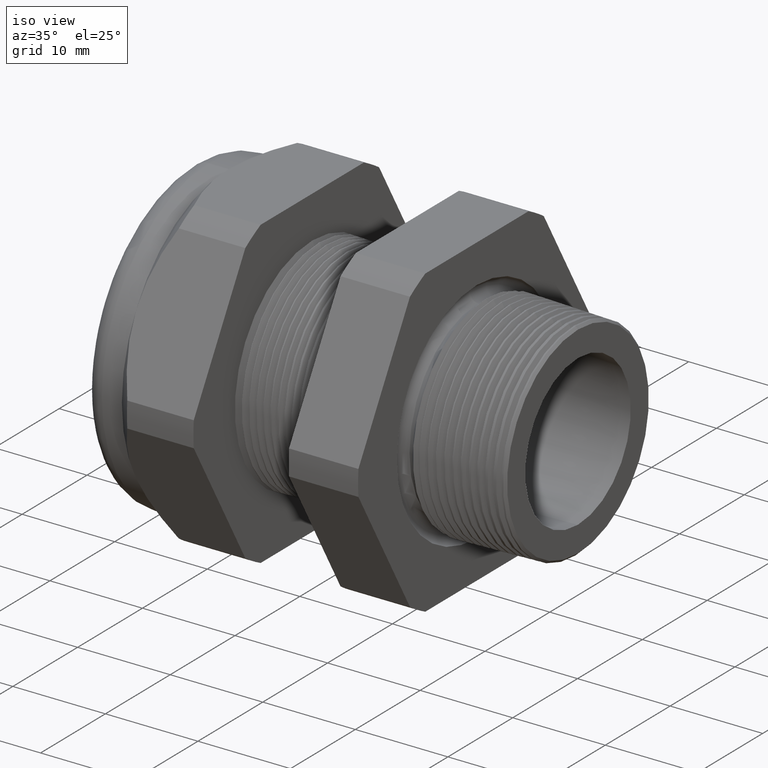
[diagram: clean part render]
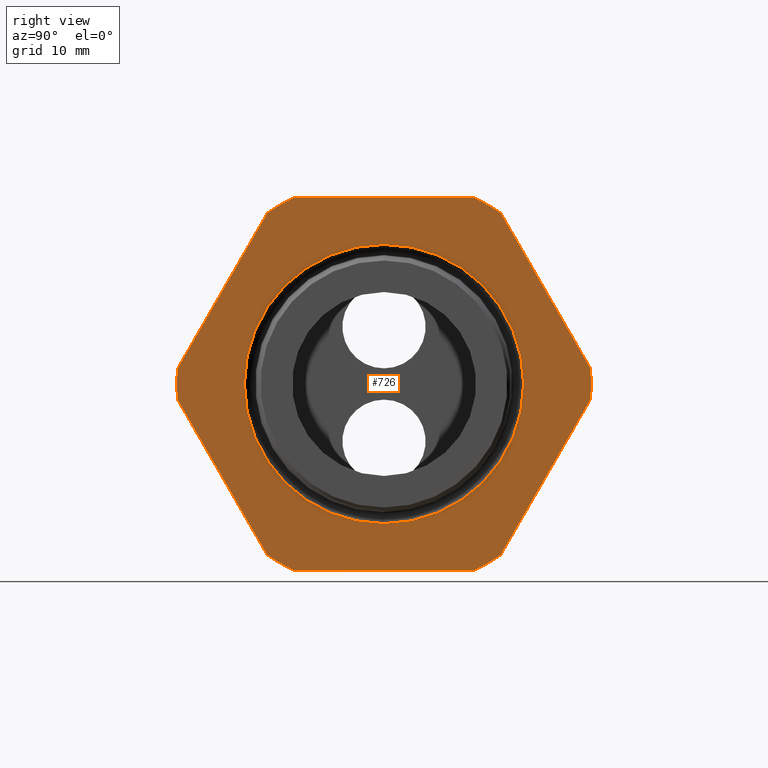
[diagram: tour spotlight — one face highlighted and labeled with its STEP entity id]
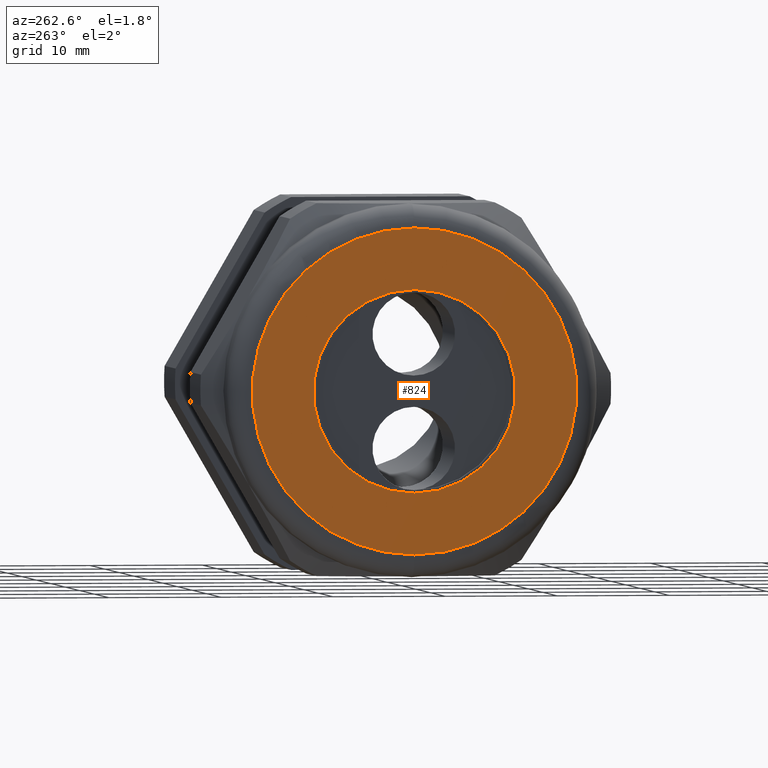
[diagram: tour spotlight — one face highlighted and labeled with its STEP entity id]
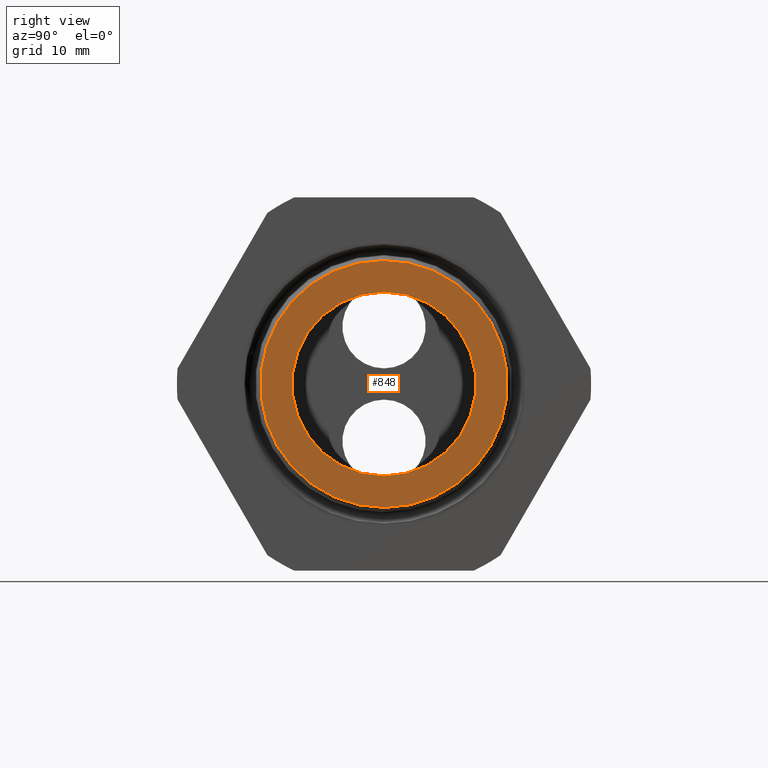
[diagram: tour spotlight — one face highlighted and labeled with its STEP entity id]
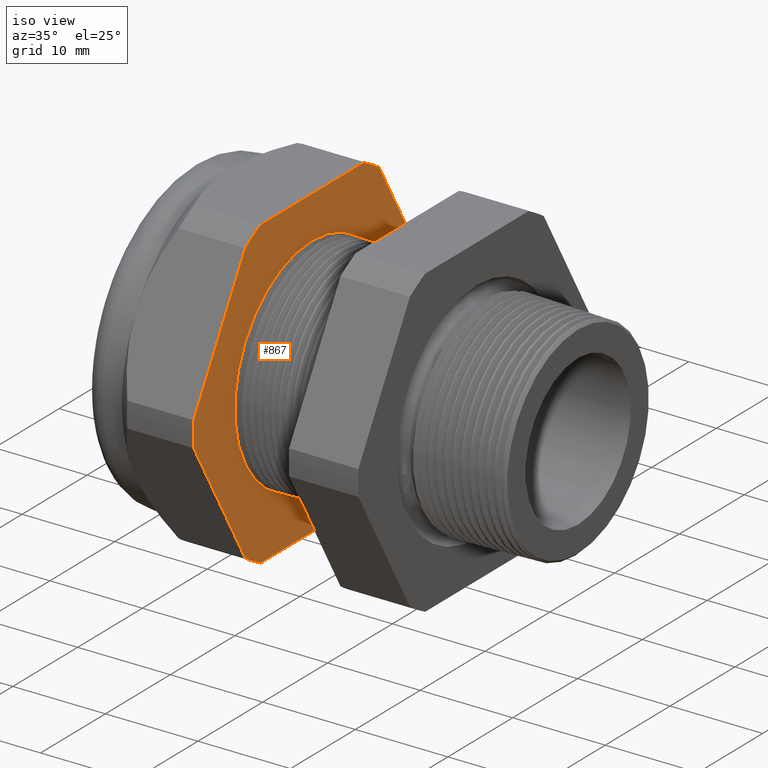
[diagram: tour spotlight — one face highlighted and labeled with its STEP entity id]
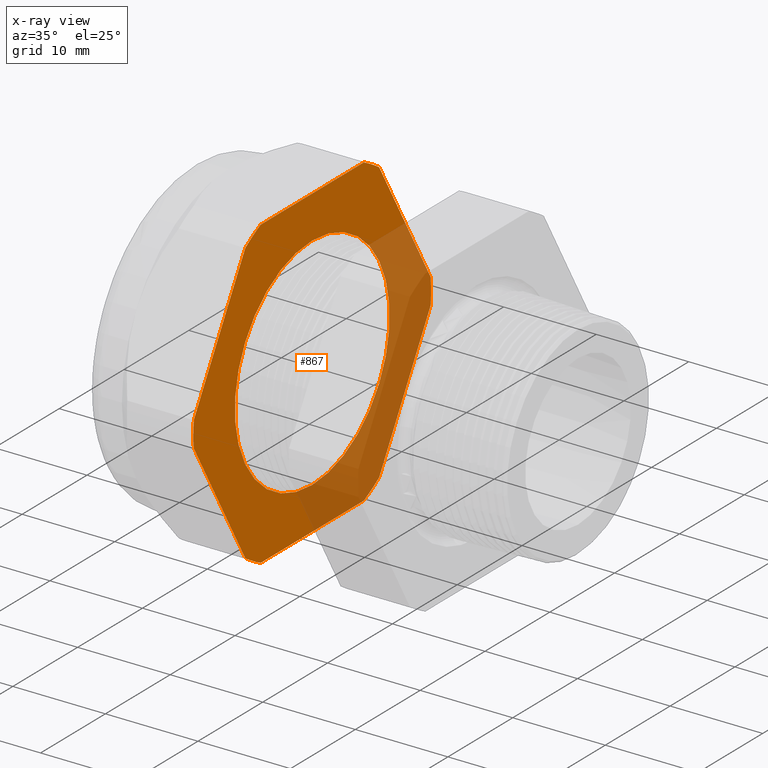
[diagram: x-ray of the same camera — body ghosted, this tour face saturated]
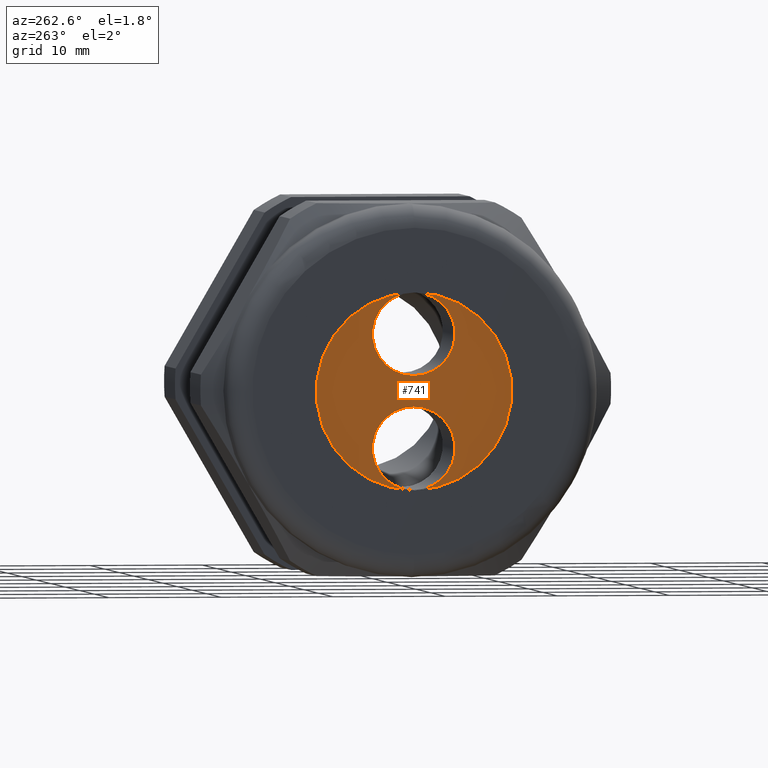
[diagram: tour spotlight — one face highlighted and labeled with its STEP entity id]
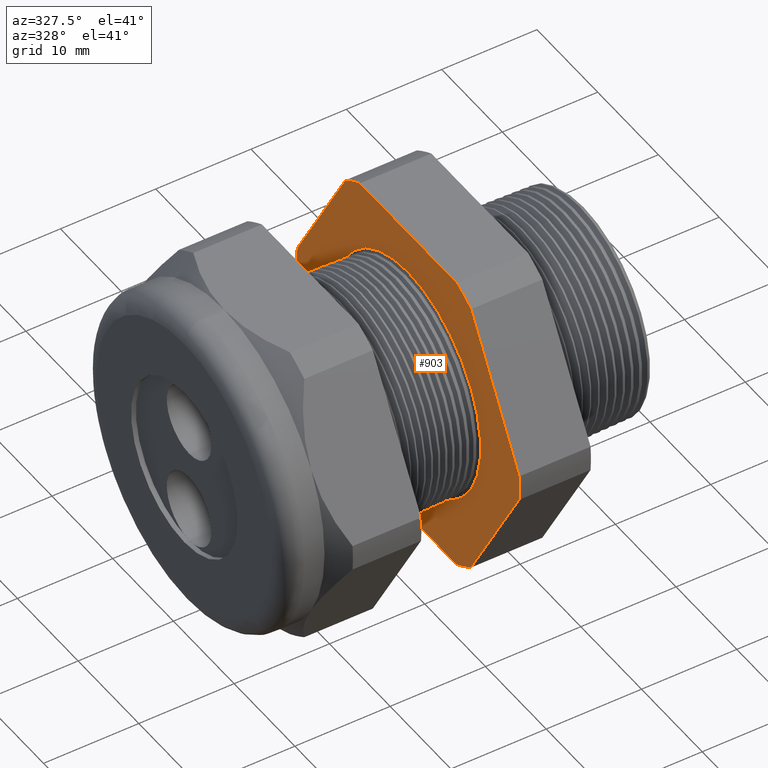
[diagram: tour spotlight — one face highlighted and labeled with its STEP entity id]
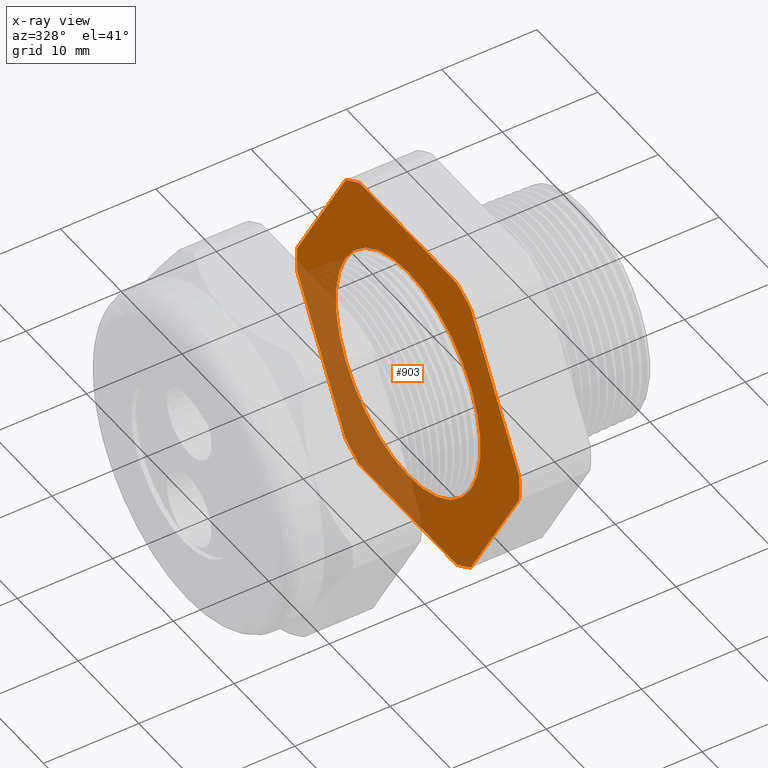
[diagram: x-ray of the same camera — body ghosted, this tour face saturated]
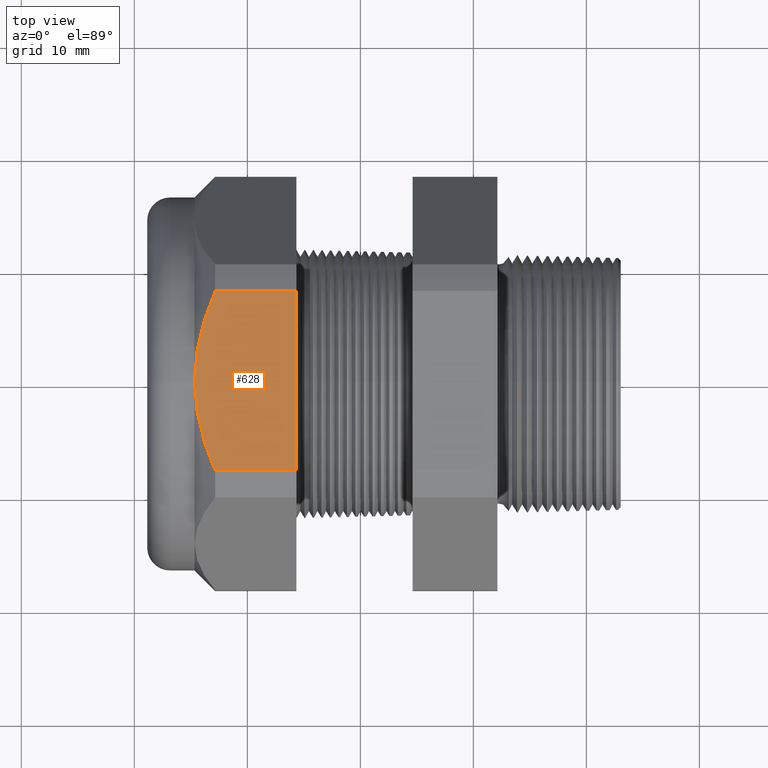
[diagram: tour spotlight — one face highlighted and labeled with its STEP entity id]
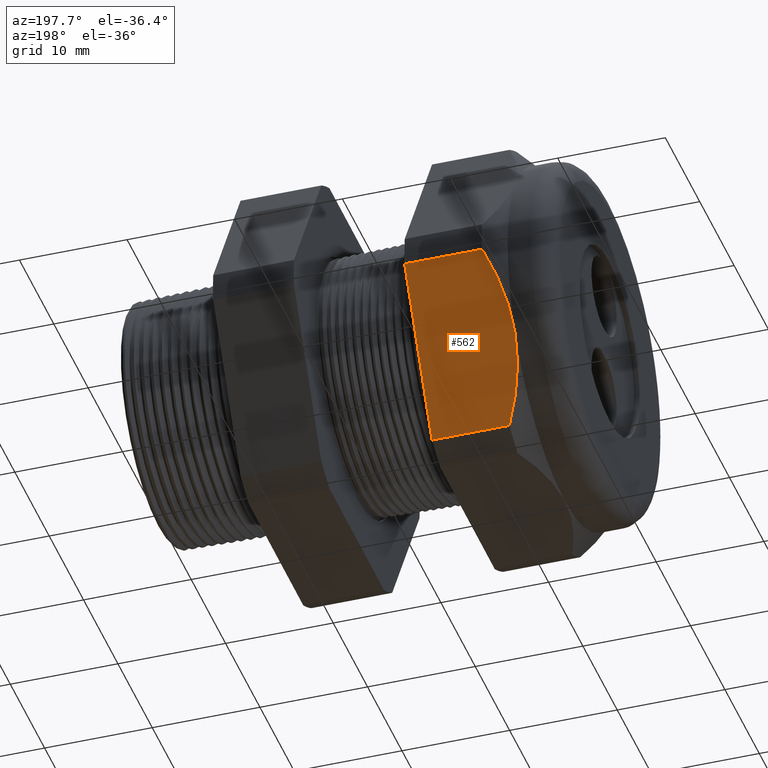
[diagram: tour spotlight — one face highlighted and labeled with its STEP entity id]
A machine part: a face-by-face anatomy tour. The part has 210 B-rep faces; the first image is the clean iso view, then the 8 largest visible faces are spotlighted one at a time (largest first), each with its STEP entity span.

Face 1 — right view, entity #726. In plain terms, the highlighted planar face has unit normal (1, 0, 0).
Definition (entity closure, byte-faithful):
#708 = EDGE_CURVE ( 'NONE', #789, #734, #2414, .T. ) ;
#709 = VERTEX_POINT ( 'NONE', #2472 ) ;
#710 = ORIENTED_EDGE ( 'NONE', *, *, #711, .T. ) ;
#711 = EDGE_CURVE ( 'NONE', #709, #712, #2471, .T. ) ;
#712 = VERTEX_POINT ( 'NONE', #2467 ) ;
#713 = ORIENTED_EDGE ( 'NONE', *, *, #714, .T. ) ;
#714 = EDGE_CURVE ( 'NONE', #712, #715, #2466, .T. ) ;
#715 = VERTEX_POINT ( 'NONE', #2461 ) ;
#716 = ORIENTED_EDGE ( 'NONE', *, *, #717, .T. ) ;
#717 = EDGE_CURVE ( 'NONE', #715, #718, #2460, .T. ) ;
#718 = VERTEX_POINT ( 'NONE', #2456 ) ;
#719 = ORIENTED_EDGE ( 'NONE', *, *, #720, .T. ) ;
#720 = EDGE_CURVE ( 'NONE', #718, #721, #2455, .T. ) ;
#721 = VERTEX_POINT ( 'NONE', #2450 ) ;
#722 = ORIENTED_EDGE ( 'NONE', *, *, #723, .T. ) ;
#723 = EDGE_CURVE ( 'NONE', #721, #777, #2449, .T. ) ;
#726 = ADVANCED_FACE ( 'NONE', ( #2445, #2497 ), #2496, .T. ) ;
#727 = EDGE_LOOP ( 'NONE', ( #728, #730 ) ) ;
#728 = ORIENTED_EDGE ( 'NONE', *, *, #729, .F. ) ;
#729 = EDGE_CURVE ( 'NONE', #906, #987, #2491, .T. ) ;
#730 = ORIENTED_EDGE ( 'NONE', *, *, #911, .F. ) ;
#731 = EDGE_LOOP ( 'NONE', ( #732, #736, #710, #713, #716, #719, #722, #778, #781, #784, #787, #790 ) ) ;
#732 = ORIENTED_EDGE ( 'NONE', *, *, #733, .T. ) ;
#733 = EDGE_CURVE ( 'NONE', #734, #735, #2486, .T. ) ;
#734 = VERTEX_POINT ( 'NONE', #2482 ) ;
#735 = VERTEX_POINT ( 'NONE', #2481 ) ;
#736 = ORIENTED_EDGE ( 'NONE', *, *, #738, .T. ) ;
#738 = EDGE_CURVE ( 'NONE', #735, #709, #2480, .T. ) ;
#777 = VERTEX_POINT ( 'NONE', #2578 ) ;
#778 = ORIENTED_EDGE ( 'NONE', *, *, #779, .T. ) ;
#779 = EDGE_CURVE ( 'NONE', #777, #780, #2577, .T. ) ;
#780 = VERTEX_POINT ( 'NONE', #2572 ) ;
#781 = ORIENTED_EDGE ( 'NONE', *, *, #782, .T. ) ;
#782 = EDGE_CURVE ( 'NONE', #780, #783, #2571, .T. ) ;
#783 = VERTEX_POINT ( 'NONE', #2567 ) ;
#784 = ORIENTED_EDGE ( 'NONE', *, *, #785, .T. ) ;
#785 = EDGE_CURVE ( 'NONE', #783, #786, #2565, .T. ) ;
#786 = VERTEX_POINT ( 'NONE', #2566 ) ;
#787 = ORIENTED_EDGE ( 'NONE', *, *, #788, .T. ) ;
#788 = EDGE_CURVE ( 'NONE', #786, #789, #2626, .T. ) ;
#789 = VERTEX_POINT ( 'NONE', #2622 ) ;
#790 = ORIENTED_EDGE ( 'NONE', *, *, #708, .T. ) ;
#906 = VERTEX_POINT ( 'NONE', #2814 ) ;
#911 = EDGE_CURVE ( 'NONE', #987, #906, #2808, .T. ) ;
#987 = VERTEX_POINT ( 'NONE', #2942 ) ;
#2410 = DIRECTION ( 'NONE',  ( 0.0000000000000000000, 0.0000000000000000000, -1.000000000000000000 ) ) ;
#2411 = DIRECTION ( 'NONE',  ( 1.000000000000000000, 0.0000000000000000000, 0.0000000000000000000 ) ) ;
#2412 = CARTESIAN_POINT ( 'NONE',  ( -0.3100000000000000000, 0.0000000000000000000, 0.0000000000000000000 ) ) ;
#2413 = AXIS2_PLACEMENT_3D ( 'NONE', #2412, #2411, #2410 ) ;
#2414 = CIRCLE ( 'NONE', #2413, 0.7215000000000000300 ) ;
#2445 = FACE_BOUND ( 'NONE', #727, .T. ) ;
#2446 = DIRECTION ( 'NONE',  ( 0.0000000000000000000, -0.4999999999999995600, -0.8660254037844388200 ) ) ;
#2447 = VECTOR ( 'NONE', #2446, 39.37007874015748900 ) ;
#2448 = CARTESIAN_POINT ( 'NONE',  ( -0.3100000000000000000, -0.2379165124598858200, 0.8879165124598844500 ) ) ;
#2449 = LINE ( 'NONE', #2448, #2447 ) ;
#2450 = CARTESIAN_POINT ( 'NONE',  ( -0.3100000000000000000, -0.4063420493440885700, 0.5961949252843791200 ) ) ;
#2451 = DIRECTION ( 'NONE',  ( 0.0000000000000000000, 0.0000000000000000000, -1.000000000000000000 ) ) ;
#2452 = DIRECTION ( 'NONE',  ( 1.000000000000000000, 0.0000000000000000000, 0.0000000000000000000 ) ) ;
#2453 = CARTESIAN_POINT ( 'NONE',  ( -0.3100000000000000000, 0.0000000000000000000, 0.0000000000000000000 ) ) ;
#2454 = AXIS2_PLACEMENT_3D ( 'NONE', #2453, #2452, #2451 ) ;
#2455 = CIRCLE ( 'NONE', #2454, 0.7215000000000000300 ) ;
#2456 = CARTESIAN_POINT ( 'NONE',  ( -0.3100000000000000000, -0.3131489262315937400, 0.6500000000000000200 ) ) ;
#2457 = DIRECTION ( 'NONE',  ( 0.0000000000000000000, -1.000000000000000000, 0.0000000000000000000 ) ) ;
#2458 = VECTOR ( 'NONE', #2457, 39.37007874015748100 ) ;
#2459 = CARTESIAN_POINT ( 'NONE',  ( -0.3100000000000000000, 1.300000000000000000, 0.6499999999999999100 ) ) ;
#2460 = LINE ( 'NONE', #2459, #2458 ) ;
#2461 = CARTESIAN_POINT ( 'NONE',  ( -0.3100000000000000000, 0.3131489262315937900, 0.6499999999999999100 ) ) ;
#2462 = DIRECTION ( 'NONE',  ( 0.0000000000000000000, 0.0000000000000000000, -1.000000000000000000 ) ) ;
#2463 = DIRECTION ( 'NONE',  ( 1.000000000000000000, 0.0000000000000000000, 0.0000000000000000000 ) ) ;
#2464 = CARTESIAN_POINT ( 'NONE',  ( -0.3100000000000000000, 0.0000000000000000000, 0.0000000000000000000 ) ) ;
#2465 = AXIS2_PLACEMENT_3D ( 'NONE', #2464, #2463, #2462 ) ;
#2466 = CIRCLE ( 'NONE', #2465, 0.7215000000000000300 ) ;
#2467 = CARTESIAN_POINT ( 'NONE',  ( -0.3100000000000000000, 0.4063420493440890700, 0.5961949252843787800 ) ) ;
#2468 = DIRECTION ( 'NONE',  ( 0.0000000000000000000, -0.4999999999999998900, 0.8660254037844386000 ) ) ;
#2469 = VECTOR ( 'NONE', #2468, 39.37007874015748100 ) ;
#2470 = CARTESIAN_POINT ( 'NONE',  ( -0.3100000000000000000, 0.8879165124598854500, -0.2379165124598849300 ) ) ;
#2471 = LINE ( 'NONE', #2470, #2469 ) ;
#2472 = CARTESIAN_POINT ( 'NONE',  ( -0.3100000000000000000, 0.7194909755756817600, 0.05380507471562173000 ) ) ;
#2476 = DIRECTION ( 'NONE',  ( 0.0000000000000000000, 0.0000000000000000000, -1.000000000000000000 ) ) ;
#2477 = DIRECTION ( 'NONE',  ( 1.000000000000000000, 0.0000000000000000000, 0.0000000000000000000 ) ) ;
#2478 = CARTESIAN_POINT ( 'NONE',  ( -0.3100000000000000000, 0.0000000000000000000, 0.0000000000000000000 ) ) ;
#2479 = AXIS2_PLACEMENT_3D ( 'NONE', #2478, #2477, #2476 ) ;
#2480 = CIRCLE ( 'NONE', #2479, 0.7214999999999999200 ) ;
#2481 = CARTESIAN_POINT ( 'NONE',  ( -0.3100000000000000000, 0.7194909755756817600, -0.05380507471562094600 ) ) ;
#2482 = CARTESIAN_POINT ( 'NONE',  ( -0.3100000000000000000, 0.4063420493440886800, -0.5961949252843790100 ) ) ;
#2483 = DIRECTION ( 'NONE',  ( 0.0000000000000000000, 0.4999999999999996100, 0.8660254037844388200 ) ) ;
#2484 = VECTOR ( 'NONE', #2483, 39.37007874015748900 ) ;
#2485 = CARTESIAN_POINT ( 'NONE',  ( -0.3100000000000000000, 0.8879165124598849000, 0.2379165124598850200 ) ) ;
#2486 = LINE ( 'NONE', #2485, #2484 ) ;
#2487 = DIRECTION ( 'NONE',  ( 0.0000000000000000000, 0.0000000000000000000, -1.000000000000000000 ) ) ;
#2488 = DIRECTION ( 'NONE',  ( 1.000000000000000000, 0.0000000000000000000, 0.0000000000000000000 ) ) ;
#2489 = CARTESIAN_POINT ( 'NONE',  ( -0.3100000000000000000, 0.0000000000000000000, 0.0000000000000000000 ) ) ;
#2490 = AXIS2_PLACEMENT_3D ( 'NONE', #2489, #2488, #2487 ) ;
#2491 = CIRCLE ( 'NONE', #2490, 0.4863026235185991000 ) ;
#2492 = DIRECTION ( 'NONE',  ( 0.0000000000000000000, 0.0000000000000000000, -1.000000000000000000 ) ) ;
#2493 = DIRECTION ( 'NONE',  ( 1.000000000000000000, 0.0000000000000000000, 0.0000000000000000000 ) ) ;
#2494 = CARTESIAN_POINT ( 'NONE',  ( -0.3100000000000000000, 1.300000000000000000, 0.0000000000000000000 ) ) ;
#2495 = AXIS2_PLACEMENT_3D ( 'NONE', #2494, #2493, #2492 ) ;
#2496 = PLANE ( 'NONE',  #2495 ) ;
#2497 = FACE_OUTER_BOUND ( 'NONE', #731, .T. ) ;
#2561 = DIRECTION ( 'NONE',  ( 0.0000000000000000000, 0.0000000000000000000, -1.000000000000000000 ) ) ;
#2562 = DIRECTION ( 'NONE',  ( 1.000000000000000000, 0.0000000000000000000, 0.0000000000000000000 ) ) ;
#2563 = CARTESIAN_POINT ( 'NONE',  ( -0.3100000000000000000, 0.0000000000000000000, 0.0000000000000000000 ) ) ;
#2564 = AXIS2_PLACEMENT_3D ( 'NONE', #2563, #2562, #2561 ) ;
#2565 = CIRCLE ( 'NONE', #2564, 0.7215000000000000300 ) ;
#2566 = CARTESIAN_POINT ( 'NONE',  ( -0.3100000000000000000, -0.3131489262315934100, -0.6500000000000001300 ) ) ;
#2567 = CARTESIAN_POINT ( 'NONE',  ( -0.3100000000000000000, -0.4063420493440881300, -0.5961949252843793400 ) ) ;
#2568 = DIRECTION ( 'NONE',  ( 0.0000000000000000000, 0.5000000000000001100, -0.8660254037844386000 ) ) ;
#2569 = VECTOR ( 'NONE', #2568, 39.37007874015748100 ) ;
#2570 = CARTESIAN_POINT ( 'NONE',  ( -0.3100000000000000000, -0.2379165124598852700, -0.8879165124598854500 ) ) ;
#2571 = LINE ( 'NONE', #2570, #2569 ) ;
#2572 = CARTESIAN_POINT ( 'NONE',  ( -0.3100000000000000000, -0.7194909755756819800, -0.05380507471562082100 ) ) ;
#2573 = DIRECTION ( 'NONE',  ( 0.0000000000000000000, 0.0000000000000000000, -1.000000000000000000 ) ) ;
#2574 = DIRECTION ( 'NONE',  ( 1.000000000000000000, 0.0000000000000000000, 0.0000000000000000000 ) ) ;
#2575 = CARTESIAN_POINT ( 'NONE',  ( -0.3100000000000000000, 0.0000000000000000000, 0.0000000000000000000 ) ) ;
#2576 = AXIS2_PLACEMENT_3D ( 'NONE', #2575, #2574, #2573 ) ;
#2577 = CIRCLE ( 'NONE', #2576, 0.7215000000000000300 ) ;
#2578 = CARTESIAN_POINT ( 'NONE',  ( -0.3100000000000000000, -0.7194909755756819800, 0.05380507471562025900 ) ) ;
#2622 = CARTESIAN_POINT ( 'NONE',  ( -0.3100000000000000000, 0.3131489262315934100, -0.6500000000000001300 ) ) ;
#2623 = DIRECTION ( 'NONE',  ( 0.0000000000000000000, 1.000000000000000000, 0.0000000000000000000 ) ) ;
#2624 = VECTOR ( 'NONE', #2623, 39.37007874015748100 ) ;
#2625 = CARTESIAN_POINT ( 'NONE',  ( -0.3100000000000000000, 1.300000000000000000, -0.6500000000000001300 ) ) ;
#2626 = LINE ( 'NONE', #2625, #2624 ) ;
#2804 = DIRECTION ( 'NONE',  ( 0.0000000000000000000, 0.0000000000000000000, -1.000000000000000000 ) ) ;
#2805 = DIRECTION ( 'NONE',  ( 1.000000000000000000, 0.0000000000000000000, 0.0000000000000000000 ) ) ;
#2806 = CARTESIAN_POINT ( 'NONE',  ( -0.3100000000000000000, 0.0000000000000000000, 0.0000000000000000000 ) ) ;
#2807 = AXIS2_PLACEMENT_3D ( 'NONE', #2806, #2805, #2804 ) ;
#2808 = CIRCLE ( 'NONE', #2807, 0.4863026235185991000 ) ;
#2814 = CARTESIAN_POINT ( 'NONE',  ( -0.3100000000000000000, 0.0000000000000000000, -0.4863026235185991000 ) ) ;
#2942 = CARTESIAN_POINT ( 'NONE',  ( -0.3100000000000000000, 5.955489513090126900E-017, 0.4863026235185991000 ) ) ;

Face 2 — auxiliary view, entity #824. In plain terms, the highlighted planar face has unit normal (-1, 0, 0).
Definition (entity closure, byte-faithful):
#64 = VERTEX_POINT ( 'NONE', #1153 ) ;
#65 = EDGE_CURVE ( 'NONE', #64, #68, #1152, .T. ) ;
#68 = VERTEX_POINT ( 'NONE', #1143 ) ;
#750 = ORIENTED_EDGE ( 'NONE', *, *, #856, .T. ) ;
#751 = EDGE_LOOP ( 'NONE', ( #859, #863 ) ) ;
#824 = ADVANCED_FACE ( 'NONE', ( #2634, #2633 ), #2632, .T. ) ;
#825 = EDGE_LOOP ( 'NONE', ( #828, #750 ) ) ;
#828 = ORIENTED_EDGE ( 'NONE', *, *, #5468, .T. ) ;
#856 = EDGE_CURVE ( 'NONE', #5476, #5447, #2714, .T. ) ;
#859 = ORIENTED_EDGE ( 'NONE', *, *, #861, .T. ) ;
#861 = EDGE_CURVE ( 'NONE', #68, #64, #2709, .T. ) ;
#863 = ORIENTED_EDGE ( 'NONE', *, *, #65, .T. ) ;
#1143 = CARTESIAN_POINT ( 'NONE',  ( -1.529999999999999800, 0.0000000000000000000, -0.3549999999999999800 ) ) ;
#1148 = DIRECTION ( 'NONE',  ( 0.0000000000000000000, 0.0000000000000000000, -1.000000000000000000 ) ) ;
#1149 = DIRECTION ( 'NONE',  ( 1.000000000000000000, 0.0000000000000000000, 0.0000000000000000000 ) ) ;
#1150 = CARTESIAN_POINT ( 'NONE',  ( -1.529999999999999800, 0.0000000000000000000, 0.0000000000000000000 ) ) ;
#1151 = AXIS2_PLACEMENT_3D ( 'NONE', #1150, #1149, #1148 ) ;
#1152 = CIRCLE ( 'NONE', #1151, 0.3549999999999999800 ) ;
#1153 = CARTESIAN_POINT ( 'NONE',  ( -1.529999999999999800, 4.347496136973103500E-017, 0.3549999999999999800 ) ) ;
#2627 = DIRECTION ( 'NONE',  ( 0.0000000000000000000, 0.0000000000000000000, 1.000000000000000000 ) ) ;
#2628 = DIRECTION ( 'NONE',  ( -1.000000000000000000, 0.0000000000000000000, 0.0000000000000000000 ) ) ;
#2629 = CARTESIAN_POINT ( 'NONE',  ( -1.529999999999999800, 0.6499999999999999100, 0.0000000000000000000 ) ) ;
#2630 = AXIS2_PLACEMENT_3D ( 'NONE', #2629, #2628, #2627 ) ;
#2632 = PLANE ( 'NONE',  #2630 ) ;
#2633 = FACE_BOUND ( 'NONE', #751, .T. ) ;
#2634 = FACE_OUTER_BOUND ( 'NONE', #825, .T. ) ;
#2705 = DIRECTION ( 'NONE',  ( 0.0000000000000000000, 0.0000000000000000000, -1.000000000000000000 ) ) ;
#2706 = DIRECTION ( 'NONE',  ( 1.000000000000000000, 0.0000000000000000000, 0.0000000000000000000 ) ) ;
#2707 = CARTESIAN_POINT ( 'NONE',  ( -1.529999999999999800, 0.0000000000000000000, 0.0000000000000000000 ) ) ;
#2708 = AXIS2_PLACEMENT_3D ( 'NONE', #2707, #2706, #2705 ) ;
#2709 = CIRCLE ( 'NONE', #2708, 0.3549999999999999800 ) ;
#2710 = DIRECTION ( 'NONE',  ( 0.0000000000000000000, 0.0000000000000000000, 1.000000000000000000 ) ) ;
#2711 = DIRECTION ( 'NONE',  ( -1.000000000000000000, 0.0000000000000000000, 0.0000000000000000000 ) ) ;
#2712 = CARTESIAN_POINT ( 'NONE',  ( -1.529999999999999800, 0.0000000000000000000, 0.0000000000000000000 ) ) ;
#2713 = AXIS2_PLACEMENT_3D ( 'NONE', #2712, #2711, #2710 ) ;
#2714 = CIRCLE ( 'NONE', #2713, 0.5699999999999999500 ) ;
#4232 = CARTESIAN_POINT ( 'NONE',  ( -1.529999999999999800, 0.0000000000000000000, 0.5699999999999999500 ) ) ;
#4251 = DIRECTION ( 'NONE',  ( 0.0000000000000000000, 0.0000000000000000000, 1.000000000000000000 ) ) ;
#4252 = DIRECTION ( 'NONE',  ( -1.000000000000000000, 0.0000000000000000000, 0.0000000000000000000 ) ) ;
#4253 = AXIS2_PLACEMENT_3D ( 'NONE', #4259, #4252, #4251 ) ;
#4254 = CIRCLE ( 'NONE', #4253, 0.5699999999999999500 ) ;
#4259 = CARTESIAN_POINT ( 'NONE',  ( -1.529999999999999800, 0.0000000000000000000, 0.0000000000000000000 ) ) ;
#4300 = CARTESIAN_POINT ( 'NONE',  ( -1.529999999999999800, 7.470345474798854000E-017, -0.5699999999999999500 ) ) ;
#5447 = VERTEX_POINT ( 'NONE', #4232 ) ;
#5468 = EDGE_CURVE ( 'NONE', #5447, #5476, #4254, .T. ) ;
#5476 = VERTEX_POINT ( 'NONE', #4300 ) ;

Face 3 — right view, entity #848. In plain terms, the highlighted planar face has unit normal (1, 0, 0).
Definition (entity closure, byte-faithful):
#40 = EDGE_CURVE ( 'NONE', #5509, #5507, #1058, .T. ) ;
#842 = EDGE_CURVE ( 'NONE', #5507, #5509, #2669, .T. ) ;
#848 = ADVANCED_FACE ( 'NONE', ( #2658, #2724 ), #2664, .T. ) ;
#849 = EDGE_LOOP ( 'NONE', ( #851, #853 ) ) ;
#851 = ORIENTED_EDGE ( 'NONE', *, *, #852, .T. ) ;
#852 = EDGE_CURVE ( 'NONE', #5401, #5407, #2719, .T. ) ;
#853 = ORIENTED_EDGE ( 'NONE', *, *, #5413, .T. ) ;
#854 = EDGE_LOOP ( 'NONE', ( #855, #902 ) ) ;
#855 = ORIENTED_EDGE ( 'NONE', *, *, #40, .F. ) ;
#902 = ORIENTED_EDGE ( 'NONE', *, *, #842, .F. ) ;
#1058 = CIRCLE ( 'NONE', #1117, 0.3204016610924743100 ) ;
#1114 = DIRECTION ( 'NONE',  ( 0.0000000000000000000, 0.0000000000000000000, -1.000000000000000000 ) ) ;
#1115 = DIRECTION ( 'NONE',  ( 1.000000000000000000, 0.0000000000000000000, 0.0000000000000000000 ) ) ;
#1116 = CARTESIAN_POINT ( 'NONE',  ( 0.1200000000000000200, 0.0000000000000000000, 0.0000000000000000000 ) ) ;
#1117 = AXIS2_PLACEMENT_3D ( 'NONE', #1116, #1115, #1114 ) ;
#2658 = FACE_OUTER_BOUND ( 'NONE', #849, .T. ) ;
#2664 = PLANE ( 'NONE',  #2723 ) ;
#2665 = DIRECTION ( 'NONE',  ( 0.0000000000000000000, 0.0000000000000000000, -1.000000000000000000 ) ) ;
#2666 = DIRECTION ( 'NONE',  ( 1.000000000000000000, 0.0000000000000000000, 0.0000000000000000000 ) ) ;
#2667 = CARTESIAN_POINT ( 'NONE',  ( 0.1200000000000000200, 0.0000000000000000000, 0.0000000000000000000 ) ) ;
#2668 = AXIS2_PLACEMENT_3D ( 'NONE', #2667, #2666, #2665 ) ;
#2669 = CIRCLE ( 'NONE', #2668, 0.3204016610924743100 ) ;
#2715 = DIRECTION ( 'NONE',  ( 0.0000000000000000000, 0.0000000000000000000, -1.000000000000000000 ) ) ;
#2716 = DIRECTION ( 'NONE',  ( 1.000000000000000000, 0.0000000000000000000, 0.0000000000000000000 ) ) ;
#2717 = CARTESIAN_POINT ( 'NONE',  ( 0.1200000000000000200, 0.0000000000000000000, 0.0000000000000000000 ) ) ;
#2718 = AXIS2_PLACEMENT_3D ( 'NONE', #2717, #2716, #2715 ) ;
#2719 = CIRCLE ( 'NONE', #2718, 0.4301292403640452600 ) ;
#2720 = DIRECTION ( 'NONE',  ( 0.0000000000000000000, 0.0000000000000000000, -1.000000000000000000 ) ) ;
#2721 = DIRECTION ( 'NONE',  ( 1.000000000000000000, 0.0000000000000000000, 0.0000000000000000000 ) ) ;
#2722 = CARTESIAN_POINT ( 'NONE',  ( 0.1200000000000000200, 0.3204016610924743100, 0.0000000000000000000 ) ) ;
#2723 = AXIS2_PLACEMENT_3D ( 'NONE', #2722, #2721, #2720 ) ;
#2724 = FACE_BOUND ( 'NONE', #854, .T. ) ;
#4149 = DIRECTION ( 'NONE',  ( 1.000000000000000000, 0.0000000000000000000, 0.0000000000000000000 ) ) ;
#4150 = CARTESIAN_POINT ( 'NONE',  ( 0.1200000000000000200, 0.0000000000000000000, 0.0000000000000000000 ) ) ;
#4151 = AXIS2_PLACEMENT_3D ( 'NONE', #4150, #4149, #4215 ) ;
#4152 = CIRCLE ( 'NONE', #4151, 0.4301292403640452600 ) ;
#4153 = CARTESIAN_POINT ( 'NONE',  ( 0.1200000000000000200, 5.332067285935767100E-017, -0.4301292403640452600 ) ) ;
#4170 = CARTESIAN_POINT ( 'NONE',  ( 0.1200000000000000200, 0.0000000000000000000, 0.4301292403640452600 ) ) ;
#4215 = DIRECTION ( 'NONE',  ( 0.0000000000000000000, 0.0000000000000000000, -1.000000000000000000 ) ) ;
#4313 = CARTESIAN_POINT ( 'NONE',  ( 0.1200000000000000200, 0.0000000000000000000, 0.3204016610924743100 ) ) ;
#4320 = CARTESIAN_POINT ( 'NONE',  ( 0.1200000000000000200, 4.135642411978520400E-017, -0.3204016610924743100 ) ) ;
#5401 = VERTEX_POINT ( 'NONE', #4170 ) ;
#5407 = VERTEX_POINT ( 'NONE', #4153 ) ;
#5413 = EDGE_CURVE ( 'NONE', #5407, #5401, #4152, .T. ) ;
#5507 = VERTEX_POINT ( 'NONE', #4320 ) ;
#5509 = VERTEX_POINT ( 'NONE', #4313 ) ;

Face 4 — iso view, entity #867. An x-ray twin of the same camera follows (body ghosted, this face saturated) — the face is partly hidden behind the body. In plain terms, the highlighted planar face has unit normal (1, 0, 0).
Definition (entity closure, byte-faithful):
#546 = VERTEX_POINT ( 'NONE', #2050 ) ;
#548 = EDGE_CURVE ( 'NONE', #619, #546, #2049, .T. ) ;
#585 = VERTEX_POINT ( 'NONE', #2152 ) ;
#596 = EDGE_CURVE ( 'NONE', #616, #605, #2187, .T. ) ;
#601 = VERTEX_POINT ( 'NONE', #2162 ) ;
#605 = VERTEX_POINT ( 'NONE', #2223 ) ;
#611 = EDGE_CURVE ( 'NONE', #605, #619, #2216, .T. ) ;
#616 = VERTEX_POINT ( 'NONE', #2201 ) ;
#619 = VERTEX_POINT ( 'NONE', #2195 ) ;
#627 = EDGE_CURVE ( 'NONE', #704, #635, #2240, .T. ) ;
#631 = EDGE_CURVE ( 'NONE', #653, #585, #2284, .T. ) ;
#635 = VERTEX_POINT ( 'NONE', #2269 ) ;
#648 = EDGE_CURVE ( 'NONE', #585, #601, #2303, .T. ) ;
#653 = VERTEX_POINT ( 'NONE', #2345 ) ;
#663 = EDGE_CURVE ( 'NONE', #601, #616, #2333, .T. ) ;
#672 = VERTEX_POINT ( 'NONE', #2376 ) ;
#678 = EDGE_CURVE ( 'NONE', #672, #688, #2369, .T. ) ;
#683 = VERTEX_POINT ( 'NONE', #2354 ) ;
#688 = VERTEX_POINT ( 'NONE', #2406 ) ;
#696 = EDGE_CURVE ( 'NONE', #688, #704, #2380, .T. ) ;
#700 = EDGE_CURVE ( 'NONE', #635, #653, #2435, .T. ) ;
#704 = VERTEX_POINT ( 'NONE', #2421 ) ;
#725 = EDGE_CURVE ( 'NONE', #546, #683, #2444, .T. ) ;
#746 = EDGE_CURVE ( 'NONE', #683, #672, #2511, .T. ) ;
#867 = ADVANCED_FACE ( 'NONE', ( #2695, #2756 ), #2755, .T. ) ;
#868 = EDGE_LOOP ( 'NONE', ( #869, #871 ) ) ;
#869 = ORIENTED_EDGE ( 'NONE', *, *, #870, .F. ) ;
#870 = EDGE_CURVE ( 'NONE', #4757, #4763, #2750, .T. ) ;
#871 = ORIENTED_EDGE ( 'NONE', *, *, #4755, .F. ) ;
#872 = EDGE_LOOP ( 'NONE', ( #934, #935, #936, #937, #938, #939, #940, #941, #942, #919, #920, #921 ) ) ;
#919 = ORIENTED_EDGE ( 'NONE', *, *, #663, .T. ) ;
#920 = ORIENTED_EDGE ( 'NONE', *, *, #596, .T. ) ;
#921 = ORIENTED_EDGE ( 'NONE', *, *, #611, .T. ) ;
#934 = ORIENTED_EDGE ( 'NONE', *, *, #548, .T. ) ;
#935 = ORIENTED_EDGE ( 'NONE', *, *, #725, .T. ) ;
#936 = ORIENTED_EDGE ( 'NONE', *, *, #746, .T. ) ;
#937 = ORIENTED_EDGE ( 'NONE', *, *, #678, .T. ) ;
#938 = ORIENTED_EDGE ( 'NONE', *, *, #696, .T. ) ;
#939 = ORIENTED_EDGE ( 'NONE', *, *, #627, .T. ) ;
#940 = ORIENTED_EDGE ( 'NONE', *, *, #700, .T. ) ;
#941 = ORIENTED_EDGE ( 'NONE', *, *, #631, .T. ) ;
#942 = ORIENTED_EDGE ( 'NONE', *, *, #648, .T. ) ;
#2046 = DIRECTION ( 'NONE',  ( 0.0000000000000000000, 0.4999999999999996100, 0.8660254037844388200 ) ) ;
#2047 = VECTOR ( 'NONE', #2046, 39.37007874015748900 ) ;
#2048 = CARTESIAN_POINT ( 'NONE',  ( -1.010314960629921100, 0.6804165124598852100, -0.1214840301106568700 ) ) ;
#2049 = LINE ( 'NONE', #2048, #2047 ) ;
#2050 = CARTESIAN_POINT ( 'NONE',  ( -1.010314960629921100, 0.7194909755756818700, -0.05380507471562089000 ) ) ;
#2152 = CARTESIAN_POINT ( 'NONE',  ( -1.010314960629921100, -0.7194909755756819800, -0.05380507471562082100 ) ) ;
#2162 = CARTESIAN_POINT ( 'NONE',  ( -1.010314960629921100, -0.4063420493440881300, -0.5961949252843793400 ) ) ;
#2173 = DIRECTION ( 'NONE',  ( 0.0000000000000000000, 1.000000000000000000, 0.0000000000000000000 ) ) ;
#2174 = VECTOR ( 'NONE', #2173, 39.37007874015748100 ) ;
#2175 = CARTESIAN_POINT ( 'NONE',  ( -1.010314960629921100, 0.4699999999999999700, -0.6500000000000001300 ) ) ;
#2187 = LINE ( 'NONE', #2175, #2174 ) ;
#2195 = CARTESIAN_POINT ( 'NONE',  ( -1.010314960629921100, 0.4063420493440886800, -0.5961949252843790100 ) ) ;
#2201 = CARTESIAN_POINT ( 'NONE',  ( -1.010314960629921100, -0.3131489262315934100, -0.6500000000000001300 ) ) ;
#2212 = DIRECTION ( 'NONE',  ( 0.0000000000000000000, 0.0000000000000000000, -1.000000000000000000 ) ) ;
#2213 = DIRECTION ( 'NONE',  ( 1.000000000000000000, 0.0000000000000000000, 0.0000000000000000000 ) ) ;
#2214 = CARTESIAN_POINT ( 'NONE',  ( -1.010314960629921100, 0.0000000000000000000, 0.0000000000000000000 ) ) ;
#2215 = AXIS2_PLACEMENT_3D ( 'NONE', #2214, #2213, #2212 ) ;
#2216 = CIRCLE ( 'NONE', #2215, 0.7215000000000000300 ) ;
#2223 = CARTESIAN_POINT ( 'NONE',  ( -1.010314960629921100, 0.3131489262315934100, -0.6500000000000001300 ) ) ;
#2237 = DIRECTION ( 'NONE',  ( 0.0000000000000000000, 0.0000000000000000000, -1.000000000000000000 ) ) ;
#2238 = DIRECTION ( 'NONE',  ( 1.000000000000000000, 0.0000000000000000000, 0.0000000000000000000 ) ) ;
#2239 = AXIS2_PLACEMENT_3D ( 'NONE', #2257, #2238, #2237 ) ;
#2240 = CIRCLE ( 'NONE', #2239, 0.7215000000000000300 ) ;
#2257 = CARTESIAN_POINT ( 'NONE',  ( -1.010314960629921100, 0.0000000000000000000, 0.0000000000000000000 ) ) ;
#2269 = CARTESIAN_POINT ( 'NONE',  ( -1.010314960629921100, -0.4063420493440885700, 0.5961949252843791200 ) ) ;
#2280 = DIRECTION ( 'NONE',  ( 0.0000000000000000000, 0.0000000000000000000, -1.000000000000000000 ) ) ;
#2281 = DIRECTION ( 'NONE',  ( 1.000000000000000000, 0.0000000000000000000, 0.0000000000000000000 ) ) ;
#2282 = CARTESIAN_POINT ( 'NONE',  ( -1.010314960629921100, 0.0000000000000000000, 0.0000000000000000000 ) ) ;
#2283 = AXIS2_PLACEMENT_3D ( 'NONE', #2282, #2281, #2280 ) ;
#2284 = CIRCLE ( 'NONE', #2283, 0.7215000000000000300 ) ;
#2294 = DIRECTION ( 'NONE',  ( 0.0000000000000000000, 0.5000000000000001100, -0.8660254037844386000 ) ) ;
#2295 = VECTOR ( 'NONE', #2294, 39.37007874015748100 ) ;
#2302 = CARTESIAN_POINT ( 'NONE',  ( -1.010314960629921100, -0.4454165124598852300, -0.5285159698893432400 ) ) ;
#2303 = LINE ( 'NONE', #2302, #2295 ) ;
#2329 = DIRECTION ( 'NONE',  ( 0.0000000000000000000, 0.0000000000000000000, -1.000000000000000000 ) ) ;
#2330 = DIRECTION ( 'NONE',  ( 1.000000000000000000, 0.0000000000000000000, 0.0000000000000000000 ) ) ;
#2331 = CARTESIAN_POINT ( 'NONE',  ( -1.010314960629921100, 0.0000000000000000000, 0.0000000000000000000 ) ) ;
#2332 = AXIS2_PLACEMENT_3D ( 'NONE', #2331, #2330, #2329 ) ;
#2333 = CIRCLE ( 'NONE', #2332, 0.7215000000000000300 ) ;
#2345 = CARTESIAN_POINT ( 'NONE',  ( -1.010314960629921100, -0.7194909755756819800, 0.05380507471562025900 ) ) ;
#2354 = CARTESIAN_POINT ( 'NONE',  ( -1.010314960629921100, 0.7194909755756817600, 0.05380507471562173000 ) ) ;
#2365 = DIRECTION ( 'NONE',  ( 0.0000000000000000000, 0.0000000000000000000, -1.000000000000000000 ) ) ;
#2366 = DIRECTION ( 'NONE',  ( 1.000000000000000000, 0.0000000000000000000, 0.0000000000000000000 ) ) ;
#2367 = CARTESIAN_POINT ( 'NONE',  ( -1.010314960629921100, 0.0000000000000000000, 0.0000000000000000000 ) ) ;
#2368 = AXIS2_PLACEMENT_3D ( 'NONE', #2367, #2366, #2365 ) ;
#2369 = CIRCLE ( 'NONE', #2368, 0.7215000000000000300 ) ;
#2376 = CARTESIAN_POINT ( 'NONE',  ( -1.010314960629921100, 0.4063420493440890700, 0.5961949252843787800 ) ) ;
#2379 = CARTESIAN_POINT ( 'NONE',  ( -1.010314960629921100, 0.4699999999999999700, 0.6499999999999999100 ) ) ;
#2380 = LINE ( 'NONE', #2379, #2392 ) ;
#2391 = DIRECTION ( 'NONE',  ( 0.0000000000000000000, -1.000000000000000000, 0.0000000000000000000 ) ) ;
#2392 = VECTOR ( 'NONE', #2391, 39.37007874015748100 ) ;
#2406 = CARTESIAN_POINT ( 'NONE',  ( -1.010314960629921100, 0.3131489262315937900, 0.6499999999999999100 ) ) ;
#2421 = CARTESIAN_POINT ( 'NONE',  ( -1.010314960629921100, -0.3131489262315937400, 0.6500000000000000200 ) ) ;
#2432 = DIRECTION ( 'NONE',  ( 0.0000000000000000000, -0.4999999999999995600, -0.8660254037844388200 ) ) ;
#2433 = VECTOR ( 'NONE', #2432, 39.37007874015748900 ) ;
#2434 = CARTESIAN_POINT ( 'NONE',  ( -1.010314960629921100, -0.4454165124598855100, 0.5285159698893426800 ) ) ;
#2435 = LINE ( 'NONE', #2434, #2433 ) ;
#2440 = DIRECTION ( 'NONE',  ( 0.0000000000000000000, 0.0000000000000000000, -1.000000000000000000 ) ) ;
#2441 = DIRECTION ( 'NONE',  ( 1.000000000000000000, 0.0000000000000000000, 0.0000000000000000000 ) ) ;
#2442 = CARTESIAN_POINT ( 'NONE',  ( -1.010314960629921100, 0.0000000000000000000, 0.0000000000000000000 ) ) ;
#2443 = AXIS2_PLACEMENT_3D ( 'NONE', #2442, #2441, #2440 ) ;
#2444 = CIRCLE ( 'NONE', #2443, 0.7214999999999999200 ) ;
#2502 = DIRECTION ( 'NONE',  ( 0.0000000000000000000, -0.4999999999999998900, 0.8660254037844386000 ) ) ;
#2503 = VECTOR ( 'NONE', #2502, 39.37007874015748100 ) ;
#2510 = CARTESIAN_POINT ( 'NONE',  ( -1.010314960629921100, 0.6804165124598855500, 0.1214840301106571000 ) ) ;
#2511 = LINE ( 'NONE', #2510, #2503 ) ;
#2695 = FACE_BOUND ( 'NONE', #868, .T. ) ;
#2746 = DIRECTION ( 'NONE',  ( 0.0000000000000000000, 0.0000000000000000000, -1.000000000000000000 ) ) ;
#2747 = DIRECTION ( 'NONE',  ( 1.000000000000000000, 0.0000000000000000000, 0.0000000000000000000 ) ) ;
#2748 = CARTESIAN_POINT ( 'NONE',  ( -1.010314960629921100, 0.0000000000000000000, 0.0000000000000000000 ) ) ;
#2749 = AXIS2_PLACEMENT_3D ( 'NONE', #2748, #2747, #2746 ) ;
#2750 = CIRCLE ( 'NONE', #2749, 0.4699999999999999700 ) ;
#2751 = DIRECTION ( 'NONE',  ( 0.0000000000000000000, 0.0000000000000000000, -1.000000000000000000 ) ) ;
#2752 = DIRECTION ( 'NONE',  ( 1.000000000000000000, 0.0000000000000000000, 0.0000000000000000000 ) ) ;
#2753 = CARTESIAN_POINT ( 'NONE',  ( -1.010314960629921100, 0.4699999999999999700, 0.0000000000000000000 ) ) ;
#2754 = AXIS2_PLACEMENT_3D ( 'NONE', #2753, #2752, #2751 ) ;
#2755 = PLANE ( 'NONE',  #2754 ) ;
#2756 = FACE_OUTER_BOUND ( 'NONE', #872, .T. ) ;
#3105 = CARTESIAN_POINT ( 'NONE',  ( -1.010314960629921100, 0.0000000000000000000, 0.4699999999999999700 ) ) ;
#3106 = DIRECTION ( 'NONE',  ( 0.0000000000000000000, 0.0000000000000000000, -1.000000000000000000 ) ) ;
#3107 = DIRECTION ( 'NONE',  ( 1.000000000000000000, 0.0000000000000000000, 0.0000000000000000000 ) ) ;
#3108 = CARTESIAN_POINT ( 'NONE',  ( -1.010314960629921100, 0.0000000000000000000, 0.0000000000000000000 ) ) ;
#3109 = AXIS2_PLACEMENT_3D ( 'NONE', #3108, #3107, #3106 ) ;
#3110 = CIRCLE ( 'NONE', #3109, 0.4699999999999999700 ) ;
#3158 = CARTESIAN_POINT ( 'NONE',  ( -1.010314960629921100, 5.755839955992559700E-017, -0.4699999999999999700 ) ) ;
#4755 = EDGE_CURVE ( 'NONE', #4763, #4757, #3110, .T. ) ;
#4757 = VERTEX_POINT ( 'NONE', #3105 ) ;
#4763 = VERTEX_POINT ( 'NONE', #3158 ) ;

Face 5 — auxiliary view, entity #741. In plain terms, the highlighted planar face has unit normal (-1, 0, 0).
Definition (entity closure, byte-faithful):
#24 = VERTEX_POINT ( 'NONE', #1075 ) ;
#26 = VERTEX_POINT ( 'NONE', #1074 ) ;
#684 = EDGE_CURVE ( 'NONE', #24, #26, #2353, .T. ) ;
#741 = ADVANCED_FACE ( 'NONE', ( #2530, #2529, #2528 ), #2517, .T. ) ;
#762 = ORIENTED_EDGE ( 'NONE', *, *, #764, .F. ) ;
#764 = EDGE_CURVE ( 'NONE', #4993, #962, #2535, .T. ) ;
#766 = ORIENTED_EDGE ( 'NONE', *, *, #964, .F. ) ;
#767 = EDGE_LOOP ( 'NONE', ( #770, #774 ) ) ;
#770 = ORIENTED_EDGE ( 'NONE', *, *, #772, .F. ) ;
#772 = EDGE_CURVE ( 'NONE', #4701, #4899, #2582, .T. ) ;
#774 = ORIENTED_EDGE ( 'NONE', *, *, #5390, .F. ) ;
#775 = EDGE_LOOP ( 'NONE', ( #762, #766 ) ) ;
#857 = EDGE_LOOP ( 'NONE', ( #858, #860 ) ) ;
#858 = ORIENTED_EDGE ( 'NONE', *, *, #684, .T. ) ;
#860 = ORIENTED_EDGE ( 'NONE', *, *, #4685, .T. ) ;
#962 = VERTEX_POINT ( 'NONE', #2857 ) ;
#964 = EDGE_CURVE ( 'NONE', #962, #4993, #2855, .T. ) ;
#1074 = CARTESIAN_POINT ( 'NONE',  ( -1.509999999999999800, 4.225031457058367800E-017, -0.3449999999999999200 ) ) ;
#1075 = CARTESIAN_POINT ( 'NONE',  ( -1.509999999999999800, 0.0000000000000000000, 0.3449999999999999200 ) ) ;
#1728 = DIRECTION ( 'NONE',  ( -1.000000000000000000, 0.0000000000000000000, 0.0000000000000000000 ) ) ;
#2235 = DIRECTION ( 'NONE',  ( 0.0000000000000000000, 0.0000000000000000000, 1.000000000000000000 ) ) ;
#2349 = DIRECTION ( 'NONE',  ( 0.0000000000000000000, 0.0000000000000000000, 1.000000000000000000 ) ) ;
#2350 = DIRECTION ( 'NONE',  ( -1.000000000000000000, 0.0000000000000000000, 0.0000000000000000000 ) ) ;
#2351 = CARTESIAN_POINT ( 'NONE',  ( -1.509999999999999800, 0.0000000000000000000, 0.0000000000000000000 ) ) ;
#2352 = AXIS2_PLACEMENT_3D ( 'NONE', #2351, #2350, #2349 ) ;
#2353 = CIRCLE ( 'NONE', #2352, 0.3449999999999999200 ) ;
#2513 = DIRECTION ( 'NONE',  ( 0.0000000000000000000, 0.0000000000000000000, 1.000000000000000000 ) ) ;
#2514 = DIRECTION ( 'NONE',  ( -1.000000000000000000, 0.0000000000000000000, 0.0000000000000000000 ) ) ;
#2515 = CARTESIAN_POINT ( 'NONE',  ( -1.509999999999999800, 0.0000000000000000000, 0.0000000000000000000 ) ) ;
#2516 = AXIS2_PLACEMENT_3D ( 'NONE', #2515, #2514, #2513 ) ;
#2517 = PLANE ( 'NONE',  #2516 ) ;
#2528 = FACE_OUTER_BOUND ( 'NONE', #857, .T. ) ;
#2529 = FACE_BOUND ( 'NONE', #767, .T. ) ;
#2530 = FACE_BOUND ( 'NONE', #775, .T. ) ;
#2531 = DIRECTION ( 'NONE',  ( 0.0000000000000000000, -6.982966722218764100E-015, -1.000000000000000000 ) ) ;
#2532 = DIRECTION ( 'NONE',  ( -1.000000000000000000, 0.0000000000000000000, 0.0000000000000000000 ) ) ;
#2533 = CARTESIAN_POINT ( 'NONE',  ( -1.509999999999999800, 1.392543223744865700E-015, 0.1994199999999999600 ) ) ;
#2534 = AXIS2_PLACEMENT_3D ( 'NONE', #2533, #2532, #2531 ) ;
#2535 = CIRCLE ( 'NONE', #2534, 0.1449999999999999900 ) ;
#2579 = DIRECTION ( 'NONE',  ( 0.0000000000000000000, 0.0000000000000000000, 1.000000000000000000 ) ) ;
#2580 = DIRECTION ( 'NONE',  ( -1.000000000000000000, 0.0000000000000000000, 0.0000000000000000000 ) ) ;
#2581 = AXIS2_PLACEMENT_3D ( 'NONE', #2587, #2580, #2579 ) ;
#2582 = CIRCLE ( 'NONE', #2581, 0.1449999999999999900 ) ;
#2587 = CARTESIAN_POINT ( 'NONE',  ( -1.509999999999999800, 0.0000000000000000000, -0.1994199999999999600 ) ) ;
#2851 = DIRECTION ( 'NONE',  ( 0.0000000000000000000, -6.982966722218764100E-015, -1.000000000000000000 ) ) ;
#2852 = DIRECTION ( 'NONE',  ( -1.000000000000000000, 0.0000000000000000000, 0.0000000000000000000 ) ) ;
#2853 = CARTESIAN_POINT ( 'NONE',  ( -1.509999999999999800, 1.392543223744865700E-015, 0.1994199999999999600 ) ) ;
#2854 = AXIS2_PLACEMENT_3D ( 'NONE', #2853, #2852, #2851 ) ;
#2855 = CIRCLE ( 'NONE', #2854, 0.1449999999999999900 ) ;
#2857 = CARTESIAN_POINT ( 'NONE',  ( -1.509999999999999800, 1.410300602332502300E-015, 0.05441999999999996100 ) ) ;
#2980 = CARTESIAN_POINT ( 'NONE',  ( -1.509999999999999800, 0.0000000000000000000, 0.0000000000000000000 ) ) ;
#2981 = AXIS2_PLACEMENT_3D ( 'NONE', #2980, #1728, #2235 ) ;
#2982 = CIRCLE ( 'NONE', #2981, 0.3449999999999999200 ) ;
#3017 = CARTESIAN_POINT ( 'NONE',  ( -1.509999999999999800, 0.0000000000000000000, -0.05441999999999996100 ) ) ;
#3327 = CARTESIAN_POINT ( 'NONE',  ( -1.509999999999999800, 1.775737858763661900E-017, -0.3444199999999999500 ) ) ;
#3547 = CARTESIAN_POINT ( 'NONE',  ( -1.509999999999999800, 1.392543223744865700E-015, 0.3444199999999999500 ) ) ;
#4125 = DIRECTION ( 'NONE',  ( 0.0000000000000000000, 0.0000000000000000000, 1.000000000000000000 ) ) ;
#4126 = DIRECTION ( 'NONE',  ( -1.000000000000000000, 0.0000000000000000000, 0.0000000000000000000 ) ) ;
#4127 = CARTESIAN_POINT ( 'NONE',  ( -1.509999999999999800, 0.0000000000000000000, -0.1994199999999999600 ) ) ;
#4128 = AXIS2_PLACEMENT_3D ( 'NONE', #4127, #4126, #4125 ) ;
#4129 = CIRCLE ( 'NONE', #4128, 0.1449999999999999900 ) ;
#4685 = EDGE_CURVE ( 'NONE', #26, #24, #2982, .T. ) ;
#4701 = VERTEX_POINT ( 'NONE', #3017 ) ;
#4899 = VERTEX_POINT ( 'NONE', #3327 ) ;
#4993 = VERTEX_POINT ( 'NONE', #3547 ) ;
#5390 = EDGE_CURVE ( 'NONE', #4899, #4701, #4129, .T. ) ;

Face 6 — auxiliary view, entity #903. An x-ray twin of the same camera follows (body ghosted, this face saturated) — the face is partly hidden behind the body. In plain terms, the highlighted planar face has unit normal (-1, 0, 0).
Definition (entity closure, byte-faithful):
#76 = VERTEX_POINT ( 'NONE', #1131 ) ;
#145 = EDGE_CURVE ( 'NONE', #76, #5273, #1302, .T. ) ;
#829 = EDGE_LOOP ( 'NONE', ( #830, #834, #837, #888, #892, #895, #898, #873, #875, #878, #881, #884 ) ) ;
#830 = ORIENTED_EDGE ( 'NONE', *, *, #831, .T. ) ;
#831 = EDGE_CURVE ( 'NONE', #832, #833, #2687, .T. ) ;
#832 = VERTEX_POINT ( 'NONE', #2683 ) ;
#833 = VERTEX_POINT ( 'NONE', #2682 ) ;
#834 = ORIENTED_EDGE ( 'NONE', *, *, #835, .T. ) ;
#835 = EDGE_CURVE ( 'NONE', #833, #836, #2681, .T. ) ;
#836 = VERTEX_POINT ( 'NONE', #2676 ) ;
#837 = ORIENTED_EDGE ( 'NONE', *, *, #886, .T. ) ;
#873 = ORIENTED_EDGE ( 'NONE', *, *, #874, .T. ) ;
#874 = EDGE_CURVE ( 'NONE', #900, #901, #2745, .T. ) ;
#875 = ORIENTED_EDGE ( 'NONE', *, *, #876, .T. ) ;
#876 = EDGE_CURVE ( 'NONE', #901, #877, #2740, .T. ) ;
#877 = VERTEX_POINT ( 'NONE', #2736 ) ;
#878 = ORIENTED_EDGE ( 'NONE', *, *, #879, .T. ) ;
#879 = EDGE_CURVE ( 'NONE', #877, #880, #2735, .T. ) ;
#880 = VERTEX_POINT ( 'NONE', #2730 ) ;
#881 = ORIENTED_EDGE ( 'NONE', *, *, #882, .T. ) ;
#882 = EDGE_CURVE ( 'NONE', #880, #883, #2728, .T. ) ;
#883 = VERTEX_POINT ( 'NONE', #2475 ) ;
#884 = ORIENTED_EDGE ( 'NONE', *, *, #885, .T. ) ;
#885 = EDGE_CURVE ( 'NONE', #883, #832, #1984, .T. ) ;
#886 = EDGE_CURVE ( 'NONE', #836, #887, #2786, .T. ) ;
#887 = VERTEX_POINT ( 'NONE', #2782 ) ;
#888 = ORIENTED_EDGE ( 'NONE', *, *, #889, .T. ) ;
#889 = EDGE_CURVE ( 'NONE', #887, #890, #2781, .T. ) ;
#890 = VERTEX_POINT ( 'NONE', #2776 ) ;
#892 = ORIENTED_EDGE ( 'NONE', *, *, #893, .T. ) ;
#893 = EDGE_CURVE ( 'NONE', #890, #894, #2775, .T. ) ;
#894 = VERTEX_POINT ( 'NONE', #2771 ) ;
#895 = ORIENTED_EDGE ( 'NONE', *, *, #896, .T. ) ;
#896 = EDGE_CURVE ( 'NONE', #894, #897, #2770, .T. ) ;
#897 = VERTEX_POINT ( 'NONE', #2765 ) ;
#898 = ORIENTED_EDGE ( 'NONE', *, *, #899, .T. ) ;
#899 = EDGE_CURVE ( 'NONE', #897, #900, #2764, .T. ) ;
#900 = VERTEX_POINT ( 'NONE', #2760 ) ;
#901 = VERTEX_POINT ( 'NONE', #2759 ) ;
#903 = ADVANCED_FACE ( 'NONE', ( #2758, #2757 ), #2819, .T. ) ;
#904 = EDGE_LOOP ( 'NONE', ( #905, #908 ) ) ;
#905 = ORIENTED_EDGE ( 'NONE', *, *, #907, .F. ) ;
#907 = EDGE_CURVE ( 'NONE', #5273, #76, #2813, .T. ) ;
#908 = ORIENTED_EDGE ( 'NONE', *, *, #145, .F. ) ;
#1131 = CARTESIAN_POINT ( 'NONE',  ( -0.6052755905511809600, 5.751017054842014700E-017, -0.4696061802346682100 ) ) ;
#1298 = DIRECTION ( 'NONE',  ( 0.0000000000000000000, 0.0000000000000000000, 1.000000000000000000 ) ) ;
#1299 = DIRECTION ( 'NONE',  ( -1.000000000000000000, 0.0000000000000000000, 0.0000000000000000000 ) ) ;
#1300 = CARTESIAN_POINT ( 'NONE',  ( -0.6052755905511809600, 0.0000000000000000000, 0.0000000000000000000 ) ) ;
#1301 = AXIS2_PLACEMENT_3D ( 'NONE', #1300, #1299, #1298 ) ;
#1302 = CIRCLE ( 'NONE', #1301, 0.4696061802346682700 ) ;
#1478 = DIRECTION ( 'NONE',  ( 0.0000000000000000000, 0.0000000000000000000, 1.000000000000000000 ) ) ;
#1978 = DIRECTION ( 'NONE',  ( -1.000000000000000000, 0.0000000000000000000, 0.0000000000000000000 ) ) ;
#1979 = CARTESIAN_POINT ( 'NONE',  ( -0.6052755905511810800, 0.0000000000000000000, 0.0000000000000000000 ) ) ;
#1983 = AXIS2_PLACEMENT_3D ( 'NONE', #1979, #1978, #1478 ) ;
#1984 = CIRCLE ( 'NONE', #1983, 0.7215000000000000300 ) ;
#2475 = CARTESIAN_POINT ( 'NONE',  ( -0.6052755905511810800, 0.3131489262315937900, 0.6499999999999999100 ) ) ;
#2676 = CARTESIAN_POINT ( 'NONE',  ( -0.6052755905511810800, 0.7194909755756818700, -0.05380507471562089700 ) ) ;
#2677 = DIRECTION ( 'NONE',  ( 0.0000000000000000000, 0.0000000000000000000, 1.000000000000000000 ) ) ;
#2678 = DIRECTION ( 'NONE',  ( -1.000000000000000000, 0.0000000000000000000, 0.0000000000000000000 ) ) ;
#2679 = CARTESIAN_POINT ( 'NONE',  ( -0.6052755905511810800, 0.0000000000000000000, 0.0000000000000000000 ) ) ;
#2680 = AXIS2_PLACEMENT_3D ( 'NONE', #2679, #2678, #2677 ) ;
#2681 = CIRCLE ( 'NONE', #2680, 0.7214999999999999200 ) ;
#2682 = CARTESIAN_POINT ( 'NONE',  ( -0.6052755905511810800, 0.7194909755756817600, 0.05380507471562173000 ) ) ;
#2683 = CARTESIAN_POINT ( 'NONE',  ( -0.6052755905511810800, 0.4063420493440890700, 0.5961949252843787800 ) ) ;
#2684 = DIRECTION ( 'NONE',  ( 0.0000000000000000000, 0.4999999999999998900, -0.8660254037844386000 ) ) ;
#2685 = VECTOR ( 'NONE', #2684, 39.37007874015748100 ) ;
#2686 = CARTESIAN_POINT ( 'NONE',  ( -0.6052755905511809600, 0.8879165124598854500, -0.2379165124598849300 ) ) ;
#2687 = LINE ( 'NONE', #2686, #2685 ) ;
#2725 = DIRECTION ( 'NONE',  ( 0.0000000000000000000, 1.000000000000000000, 0.0000000000000000000 ) ) ;
#2726 = VECTOR ( 'NONE', #2725, 39.37007874015748100 ) ;
#2727 = CARTESIAN_POINT ( 'NONE',  ( -0.6052755905511809600, 1.300000000000000000, 0.6499999999999999100 ) ) ;
#2728 = LINE ( 'NONE', #2727, #2726 ) ;
#2730 = CARTESIAN_POINT ( 'NONE',  ( -0.6052755905511810800, -0.3131489262315937400, 0.6500000000000000200 ) ) ;
#2731 = DIRECTION ( 'NONE',  ( 0.0000000000000000000, 0.0000000000000000000, 1.000000000000000000 ) ) ;
#2732 = DIRECTION ( 'NONE',  ( -1.000000000000000000, 0.0000000000000000000, 0.0000000000000000000 ) ) ;
#2733 = CARTESIAN_POINT ( 'NONE',  ( -0.6052755905511810800, 0.0000000000000000000, 0.0000000000000000000 ) ) ;
#2734 = AXIS2_PLACEMENT_3D ( 'NONE', #2733, #2732, #2731 ) ;
#2735 = CIRCLE ( 'NONE', #2734, 0.7215000000000000300 ) ;
#2736 = CARTESIAN_POINT ( 'NONE',  ( -0.6052755905511810800, -0.4063420493440885700, 0.5961949252843791200 ) ) ;
#2737 = DIRECTION ( 'NONE',  ( 0.0000000000000000000, 0.4999999999999995600, 0.8660254037844388200 ) ) ;
#2738 = VECTOR ( 'NONE', #2737, 39.37007874015748900 ) ;
#2739 = CARTESIAN_POINT ( 'NONE',  ( -0.6052755905511809600, -0.2379165124598858200, 0.8879165124598844500 ) ) ;
#2740 = LINE ( 'NONE', #2739, #2738 ) ;
#2741 = DIRECTION ( 'NONE',  ( 0.0000000000000000000, 0.0000000000000000000, 1.000000000000000000 ) ) ;
#2742 = DIRECTION ( 'NONE',  ( -1.000000000000000000, 0.0000000000000000000, 0.0000000000000000000 ) ) ;
#2743 = CARTESIAN_POINT ( 'NONE',  ( -0.6052755905511810800, 0.0000000000000000000, 0.0000000000000000000 ) ) ;
#2744 = AXIS2_PLACEMENT_3D ( 'NONE', #2743, #2742, #2741 ) ;
#2745 = CIRCLE ( 'NONE', #2744, 0.7215000000000000300 ) ;
#2757 = FACE_OUTER_BOUND ( 'NONE', #829, .T. ) ;
#2758 = FACE_BOUND ( 'NONE', #904, .T. ) ;
#2759 = CARTESIAN_POINT ( 'NONE',  ( -0.6052755905511810800, -0.7194909755756819800, 0.05380507471562025900 ) ) ;
#2760 = CARTESIAN_POINT ( 'NONE',  ( -0.6052755905511810800, -0.7194909755756819800, -0.05380507471562082100 ) ) ;
#2761 = DIRECTION ( 'NONE',  ( 0.0000000000000000000, -0.5000000000000001100, 0.8660254037844386000 ) ) ;
#2762 = VECTOR ( 'NONE', #2761, 39.37007874015748100 ) ;
#2763 = CARTESIAN_POINT ( 'NONE',  ( -0.6052755905511809600, -0.2379165124598852700, -0.8879165124598854500 ) ) ;
#2764 = LINE ( 'NONE', #2763, #2762 ) ;
#2765 = CARTESIAN_POINT ( 'NONE',  ( -0.6052755905511810800, -0.4063420493440881300, -0.5961949252843793400 ) ) ;
#2766 = DIRECTION ( 'NONE',  ( 0.0000000000000000000, 0.0000000000000000000, 1.000000000000000000 ) ) ;
#2767 = DIRECTION ( 'NONE',  ( -1.000000000000000000, 0.0000000000000000000, 0.0000000000000000000 ) ) ;
#2768 = CARTESIAN_POINT ( 'NONE',  ( -0.6052755905511810800, 0.0000000000000000000, 0.0000000000000000000 ) ) ;
#2769 = AXIS2_PLACEMENT_3D ( 'NONE', #2768, #2767, #2766 ) ;
#2770 = CIRCLE ( 'NONE', #2769, 0.7215000000000000300 ) ;
#2771 = CARTESIAN_POINT ( 'NONE',  ( -0.6052755905511810800, -0.3131489262315934100, -0.6500000000000001300 ) ) ;
#2772 = DIRECTION ( 'NONE',  ( 0.0000000000000000000, -1.000000000000000000, 0.0000000000000000000 ) ) ;
#2773 = VECTOR ( 'NONE', #2772, 39.37007874015748100 ) ;
#2774 = CARTESIAN_POINT ( 'NONE',  ( -0.6052755905511809600, 1.300000000000000000, -0.6500000000000001300 ) ) ;
#2775 = LINE ( 'NONE', #2774, #2773 ) ;
#2776 = CARTESIAN_POINT ( 'NONE',  ( -0.6052755905511810800, 0.3131489262315934100, -0.6500000000000001300 ) ) ;
#2777 = DIRECTION ( 'NONE',  ( 0.0000000000000000000, 0.0000000000000000000, 1.000000000000000000 ) ) ;
#2778 = DIRECTION ( 'NONE',  ( -1.000000000000000000, 0.0000000000000000000, 0.0000000000000000000 ) ) ;
#2779 = CARTESIAN_POINT ( 'NONE',  ( -0.6052755905511810800, 0.0000000000000000000, 0.0000000000000000000 ) ) ;
#2780 = AXIS2_PLACEMENT_3D ( 'NONE', #2779, #2778, #2777 ) ;
#2781 = CIRCLE ( 'NONE', #2780, 0.7215000000000000300 ) ;
#2782 = CARTESIAN_POINT ( 'NONE',  ( -0.6052755905511809600, 0.4063420493440886800, -0.5961949252843791200 ) ) ;
#2783 = DIRECTION ( 'NONE',  ( 0.0000000000000000000, -0.4999999999999996100, -0.8660254037844388200 ) ) ;
#2784 = VECTOR ( 'NONE', #2783, 39.37007874015748900 ) ;
#2785 = CARTESIAN_POINT ( 'NONE',  ( -0.6052755905511809600, 0.8879165124598849000, 0.2379165124598850200 ) ) ;
#2786 = LINE ( 'NONE', #2785, #2784 ) ;
#2809 = DIRECTION ( 'NONE',  ( 0.0000000000000000000, 0.0000000000000000000, 1.000000000000000000 ) ) ;
#2810 = DIRECTION ( 'NONE',  ( -1.000000000000000000, 0.0000000000000000000, 0.0000000000000000000 ) ) ;
#2811 = CARTESIAN_POINT ( 'NONE',  ( -0.6052755905511809600, 0.0000000000000000000, 0.0000000000000000000 ) ) ;
#2812 = AXIS2_PLACEMENT_3D ( 'NONE', #2811, #2810, #2809 ) ;
#2813 = CIRCLE ( 'NONE', #2812, 0.4696061802346682700 ) ;
#2815 = DIRECTION ( 'NONE',  ( 0.0000000000000000000, 0.0000000000000000000, 1.000000000000000000 ) ) ;
#2816 = DIRECTION ( 'NONE',  ( -1.000000000000000000, 0.0000000000000000000, 0.0000000000000000000 ) ) ;
#2817 = CARTESIAN_POINT ( 'NONE',  ( -0.6052755905511809600, 1.300000000000000000, 0.0000000000000000000 ) ) ;
#2818 = AXIS2_PLACEMENT_3D ( 'NONE', #2817, #2816, #2815 ) ;
#2819 = PLANE ( 'NONE',  #2818 ) ;
#3942 = CARTESIAN_POINT ( 'NONE',  ( -0.6052755905511809600, 0.0000000000000000000, 0.4696061802346682100 ) ) ;
#5273 = VERTEX_POINT ( 'NONE', #3942 ) ;

Face 7 — top view, entity #628. In plain terms, the highlighted planar face has unit normal (0, 0, 1).
Definition (entity closure, byte-faithful):
#81 = VERTEX_POINT ( 'NONE', #1127 ) ;
#628 = ADVANCED_FACE ( 'NONE', ( #2236 ), #2234, .T. ) ;
#629 = EDGE_LOOP ( 'NONE', ( #686, #690, #692, #694, #695 ) ) ;
#686 = ORIENTED_EDGE ( 'NONE', *, *, #687, .T. ) ;
#687 = EDGE_CURVE ( 'NONE', #688, #689, #2347, .T. ) ;
#688 = VERTEX_POINT ( 'NONE', #2406 ) ;
#689 = VERTEX_POINT ( 'NONE', #2405 ) ;
#690 = ORIENTED_EDGE ( 'NONE', *, *, #691, .T. ) ;
#691 = EDGE_CURVE ( 'NONE', #689, #81, #2404, .T. ) ;
#692 = ORIENTED_EDGE ( 'NONE', *, *, #693, .T. ) ;
#693 = EDGE_CURVE ( 'NONE', #81, #705, #2403, .T. ) ;
#694 = ORIENTED_EDGE ( 'NONE', *, *, #703, .F. ) ;
#695 = ORIENTED_EDGE ( 'NONE', *, *, #696, .F. ) ;
#696 = EDGE_CURVE ( 'NONE', #688, #704, #2380, .T. ) ;
#703 = EDGE_CURVE ( 'NONE', #704, #705, #2430, .T. ) ;
#704 = VERTEX_POINT ( 'NONE', #2421 ) ;
#705 = VERTEX_POINT ( 'NONE', #2420 ) ;
#1127 = CARTESIAN_POINT ( 'NONE',  ( -1.364645669291338500, 0.0000000000000000000, 0.6499999999999999100 ) ) ;
#2230 = DIRECTION ( 'NONE',  ( 1.000000000000000000, 0.0000000000000000000, 0.0000000000000000000 ) ) ;
#2231 = DIRECTION ( 'NONE',  ( 0.0000000000000000000, 0.0000000000000000000, 1.000000000000000000 ) ) ;
#2232 = CARTESIAN_POINT ( 'NONE',  ( 0.1200000000000000900, -0.3131489262315937900, 0.6499999999999999100 ) ) ;
#2233 = AXIS2_PLACEMENT_3D ( 'NONE', #2232, #2231, #2230 ) ;
#2234 = PLANE ( 'NONE',  #2233 ) ;
#2236 = FACE_OUTER_BOUND ( 'NONE', #629, .T. ) ;
#2347 = LINE ( 'NONE', #2409, #2408 ) ;
#2379 = CARTESIAN_POINT ( 'NONE',  ( -1.010314960629921100, 0.4699999999999999700, 0.6499999999999999100 ) ) ;
#2380 = LINE ( 'NONE', #2379, #2392 ) ;
#2381 = CARTESIAN_POINT ( 'NONE',  ( -1.293145669291338800, -0.3131489262315937900, 0.6499999999999999100 ) ) ;
#2382 = CARTESIAN_POINT ( 'NONE',  ( -1.303853258750207200, -0.2884784734615905600, 0.6499999999999998000 ) ) ;
#2383 = CARTESIAN_POINT ( 'NONE',  ( -1.313769659977807000, -0.2632641016272523300, 0.6499999999999999100 ) ) ;
#2384 = CARTESIAN_POINT ( 'NONE',  ( -1.331388897147413000, -0.2119448594679246300, 0.6499999999999998000 ) ) ;
#2385 = CARTESIAN_POINT ( 'NONE',  ( -1.339012774614851900, -0.1860728161737495400, 0.6499999999999995800 ) ) ;
#2386 = CARTESIAN_POINT ( 'NONE',  ( -1.357736925318555400, -0.1077136765109595200, 0.6499999999999998000 ) ) ;
#2387 = CARTESIAN_POINT ( 'NONE',  ( -1.364645669291338900, -0.05447567936366853900, 0.6499999999999998000 ) ) ;
#2388 = CARTESIAN_POINT ( 'NONE',  ( -1.364645669291338500, 0.0000000000000000000, 0.6499999999999999100 ) ) ;
#2391 = DIRECTION ( 'NONE',  ( 0.0000000000000000000, -1.000000000000000000, 0.0000000000000000000 ) ) ;
#2392 = VECTOR ( 'NONE', #2391, 39.37007874015748100 ) ;
#2393 = CARTESIAN_POINT ( 'NONE',  ( -1.364645669291338500, 0.0000000000000000000, 0.6499999999999999100 ) ) ;
#2394 = CARTESIAN_POINT ( 'NONE',  ( -1.364645669291338500, 0.02720867923416878100, 0.6499999999999999100 ) ) ;
#2395 = CARTESIAN_POINT ( 'NONE',  ( -1.362922968131963500, 0.05424748414116258000, 0.6500000000000000200 ) ) ;
#2396 = CARTESIAN_POINT ( 'NONE',  ( -1.356334391925264200, 0.1075827506458431200, 0.6499999999999999100 ) ) ;
#2397 = CARTESIAN_POINT ( 'NONE',  ( -1.351470867480276900, 0.1339536167969823400, 0.6500000000000000200 ) ) ;
#2398 = CARTESIAN_POINT ( 'NONE',  ( -1.338984633822156700, 0.1861735441654886700, 0.6500000000000000200 ) ) ;
#2399 = CARTESIAN_POINT ( 'NONE',  ( -1.331363564042517700, 0.2120229154253349400, 0.6500000000000000200 ) ) ;
#2400 = CARTESIAN_POINT ( 'NONE',  ( -1.313764154437382600, 0.2632758613625146300, 0.6499999999999999100 ) ) ;
#2401 = CARTESIAN_POINT ( 'NONE',  ( -1.303845930118102000, 0.2884953587440266500, 0.6499999999999999100 ) ) ;
#2402 = CARTESIAN_POINT ( 'NONE',  ( -1.293145669291338600, 0.3131489262315937900, 0.6499999999999999100 ) ) ;
#2403 = B_SPLINE_CURVE_WITH_KNOTS ( 'NONE', 3,
 ( #2388, #2387, #2386, #2385, #2384, #2383, #2382, #2381 ),
 .UNSPECIFIED., .F., .F.,
 ( 4, 2, 2, 4 ),
 ( 0.02058130614178227400, 0.02465197266607504400, 0.02668730592822142500, 0.02872263919036780600 ),
 .UNSPECIFIED. ) ;
#2404 = B_SPLINE_CURVE_WITH_KNOTS ( 'NONE', 3,
 ( #2402, #2401, #2400, #2399, #2398, #2397, #2396, #2395, #2394, #2393 ),
 .UNSPECIFIED., .F., .F.,
 ( 4, 2, 2, 2, 4 ),
 ( 0.01244868908973180600, 0.01448184335274442300, 0.01651499761575703900, 0.01854815187876965700, 0.02058130614178227400 ),
 .UNSPECIFIED. ) ;
#2405 = CARTESIAN_POINT ( 'NONE',  ( -1.293145669291338600, 0.3131489262315937900, 0.6499999999999999100 ) ) ;
#2406 = CARTESIAN_POINT ( 'NONE',  ( -1.010314960629921100, 0.3131489262315937900, 0.6499999999999999100 ) ) ;
#2407 = DIRECTION ( 'NONE',  ( -1.000000000000000000, 0.0000000000000000000, 0.0000000000000000000 ) ) ;
#2408 = VECTOR ( 'NONE', #2407, 39.37007874015748100 ) ;
#2409 = CARTESIAN_POINT ( 'NONE',  ( 0.1200000000000000900, 0.3131489262315937900, 0.6499999999999999100 ) ) ;
#2420 = CARTESIAN_POINT ( 'NONE',  ( -1.293145669291338800, -0.3131489262315937900, 0.6499999999999999100 ) ) ;
#2421 = CARTESIAN_POINT ( 'NONE',  ( -1.010314960629921100, -0.3131489262315937400, 0.6500000000000000200 ) ) ;
#2422 = DIRECTION ( 'NONE',  ( -1.000000000000000000, 0.0000000000000000000, 0.0000000000000000000 ) ) ;
#2423 = VECTOR ( 'NONE', #2422, 39.37007874015748100 ) ;
#2424 = CARTESIAN_POINT ( 'NONE',  ( 0.1200000000000000900, -0.3131489262315937400, 0.6500000000000000200 ) ) ;
#2430 = LINE ( 'NONE', #2424, #2423 ) ;

Face 8 — auxiliary view, entity #562. In plain terms, the highlighted planar face has unit normal (0, 0.866, -0.5).
Definition (entity closure, byte-faithful):
#88 = VERTEX_POINT ( 'NONE', #1169 ) ;
#543 = VERTEX_POINT ( 'NONE', #2055 ) ;
#544 = ORIENTED_EDGE ( 'NONE', *, *, #545, .F. ) ;
#545 = EDGE_CURVE ( 'NONE', #546, #543, #2054, .T. ) ;
#546 = VERTEX_POINT ( 'NONE', #2050 ) ;
#547 = ORIENTED_EDGE ( 'NONE', *, *, #548, .F. ) ;
#548 = EDGE_CURVE ( 'NONE', #619, #546, #2049, .T. ) ;
#562 = ADVANCED_FACE ( 'NONE', ( #2075 ), #2074, .T. ) ;
#563 = EDGE_LOOP ( 'NONE', ( #564, #621, #623, #544, #547 ) ) ;
#564 = ORIENTED_EDGE ( 'NONE', *, *, #618, .T. ) ;
#618 = EDGE_CURVE ( 'NONE', #619, #620, #2199, .T. ) ;
#619 = VERTEX_POINT ( 'NONE', #2195 ) ;
#620 = VERTEX_POINT ( 'NONE', #2194 ) ;
#621 = ORIENTED_EDGE ( 'NONE', *, *, #622, .T. ) ;
#622 = EDGE_CURVE ( 'NONE', #620, #88, #2259, .T. ) ;
#623 = ORIENTED_EDGE ( 'NONE', *, *, #624, .T. ) ;
#624 = EDGE_CURVE ( 'NONE', #88, #543, #2258, .T. ) ;
#1169 = CARTESIAN_POINT ( 'NONE',  ( -1.364645669291338500, 0.5629165124598853900, -0.3249999999999999000 ) ) ;
#2046 = DIRECTION ( 'NONE',  ( 0.0000000000000000000, 0.4999999999999996100, 0.8660254037844388200 ) ) ;
#2047 = VECTOR ( 'NONE', #2046, 39.37007874015748900 ) ;
#2048 = CARTESIAN_POINT ( 'NONE',  ( -1.010314960629921100, 0.6804165124598852100, -0.1214840301106568700 ) ) ;
#2049 = LINE ( 'NONE', #2048, #2047 ) ;
#2050 = CARTESIAN_POINT ( 'NONE',  ( -1.010314960629921100, 0.7194909755756818700, -0.05380507471562089000 ) ) ;
#2051 = DIRECTION ( 'NONE',  ( -1.000000000000000000, 0.0000000000000000000, 0.0000000000000000000 ) ) ;
#2052 = VECTOR ( 'NONE', #2051, 39.37007874015748100 ) ;
#2053 = CARTESIAN_POINT ( 'NONE',  ( 0.1200000000000000900, 0.7194909755756818700, -0.05380507471562089700 ) ) ;
#2054 = LINE ( 'NONE', #2053, #2052 ) ;
#2055 = CARTESIAN_POINT ( 'NONE',  ( -1.293145669291338800, 0.7194909755756818700, -0.05380507471562091100 ) ) ;
#2074 = PLANE ( 'NONE',  #2135 ) ;
#2075 = FACE_OUTER_BOUND ( 'NONE', #563, .T. ) ;
#2132 = DIRECTION ( 'NONE',  ( 0.0000000000000000000, 0.4999999999999996100, 0.8660254037844388200 ) ) ;
#2133 = DIRECTION ( 'NONE',  ( 0.0000000000000000000, 0.8660254037844388200, -0.4999999999999996100 ) ) ;
#2134 = CARTESIAN_POINT ( 'NONE',  ( 0.1200000000000000900, 0.7194909755756818700, -0.05380507471562089700 ) ) ;
#2135 = AXIS2_PLACEMENT_3D ( 'NONE', #2134, #2133, #2132 ) ;
#2194 = CARTESIAN_POINT ( 'NONE',  ( -1.293145669291338600, 0.4063420493440886800, -0.5961949252843791200 ) ) ;
#2195 = CARTESIAN_POINT ( 'NONE',  ( -1.010314960629921100, 0.4063420493440886800, -0.5961949252843790100 ) ) ;
#2196 = DIRECTION ( 'NONE',  ( -1.000000000000000000, 0.0000000000000000000, 0.0000000000000000000 ) ) ;
#2197 = VECTOR ( 'NONE', #2196, 39.37007874015748100 ) ;
#2198 = CARTESIAN_POINT ( 'NONE',  ( 0.1200000000000000900, 0.4063420493440886800, -0.5961949252843790100 ) ) ;
#2199 = LINE ( 'NONE', #2198, #2197 ) ;
#2241 = CARTESIAN_POINT ( 'NONE',  ( -1.293145669291338800, 0.7194909755756818700, -0.05380507471562091100 ) ) ;
#2242 = CARTESIAN_POINT ( 'NONE',  ( -1.314794001287756400, 0.6945519286445999100, -0.09700077109259963600 ) ) ;
#2243 = CARTESIAN_POINT ( 'NONE',  ( -1.332917759362547900, 0.6687756690813084800, -0.1416465622853038700 ) ) ;
#2244 = CARTESIAN_POINT ( 'NONE',  ( -1.357805912917037400, 0.6165592345672921100, -0.2320880798536731300 ) ) ;
#2245 = CARTESIAN_POINT ( 'NONE',  ( -1.364645669291338000, 0.5900081318517967900, -0.2780759387538906900 ) ) ;
#2246 = CARTESIAN_POINT ( 'NONE',  ( -1.364645669291338500, 0.5629165124598853900, -0.3249999999999999000 ) ) ;
#2247 = CARTESIAN_POINT ( 'NONE',  ( -1.364645669291338500, 0.5629165124598853900, -0.3249999999999999000 ) ) ;
#2248 = CARTESIAN_POINT ( 'NONE',  ( -1.364645669291338200, 0.5561389602113054900, -0.3367390648454929900 ) ) ;
#2249 = CARTESIAN_POINT ( 'NONE',  ( -1.364216759191441600, 0.5492994181763348700, -0.3485854991505651400 ) ) ;
#2250 = CARTESIAN_POINT ( 'NONE',  ( -1.362513212994342700, 0.5357104722797964000, -0.3721222438646743500 ) ) ;
#2251 = CARTESIAN_POINT ( 'NONE',  ( -1.361244147852753300, 0.5289679975772974000, -0.3838005526181506600 ) ) ;
#2252 = CARTESIAN_POINT ( 'NONE',  ( -1.356260635251699500, 0.5088871528993772500, -0.4185815958592073400 ) ) ;
#2253 = CARTESIAN_POINT ( 'NONE',  ( -1.351369503974021000, 0.4956954080403318000, -0.4414303681955598600 ) ) ;
#2254 = CARTESIAN_POINT ( 'NONE',  ( -1.332638942225223800, 0.4566257321431003700, -0.5091010318848138100 ) ) ;
#2255 = CARTESIAN_POINT ( 'NONE',  ( -1.314767232512606100, 0.4312502584378785600, -0.5530526416083856300 ) ) ;
#2256 = CARTESIAN_POINT ( 'NONE',  ( -1.293145669291338600, 0.4063420493440886800, -0.5961949252843791200 ) ) ;
#2258 = B_SPLINE_CURVE_WITH_KNOTS ( 'NONE', 3,
 ( #2246, #2245, #2244, #2243, #2242, #2241 ),
 .UNSPECIFIED., .F., .F.,
 ( 4, 2, 4 ),
 ( 0.008163776578903778400, 0.01224274182034618800, 0.01632170706178859600 ),
 .UNSPECIFIED. ) ;
#2259 = B_SPLINE_CURVE_WITH_KNOTS ( 'NONE', 3,
 ( #2256, #2255, #2254, #2253, #2252, #2251, #2250, #2249, #2248, #2247 ),
 .UNSPECIFIED., .F., .F.,
 ( 4, 2, 2, 2, 4 ),
 ( 2.483249165329356400E-007, 0.004082012451910161500, 0.006122894515406973400, 0.007143335547155376400, 0.008163776578903778400 ),
 .UNSPECIFIED. ) ;